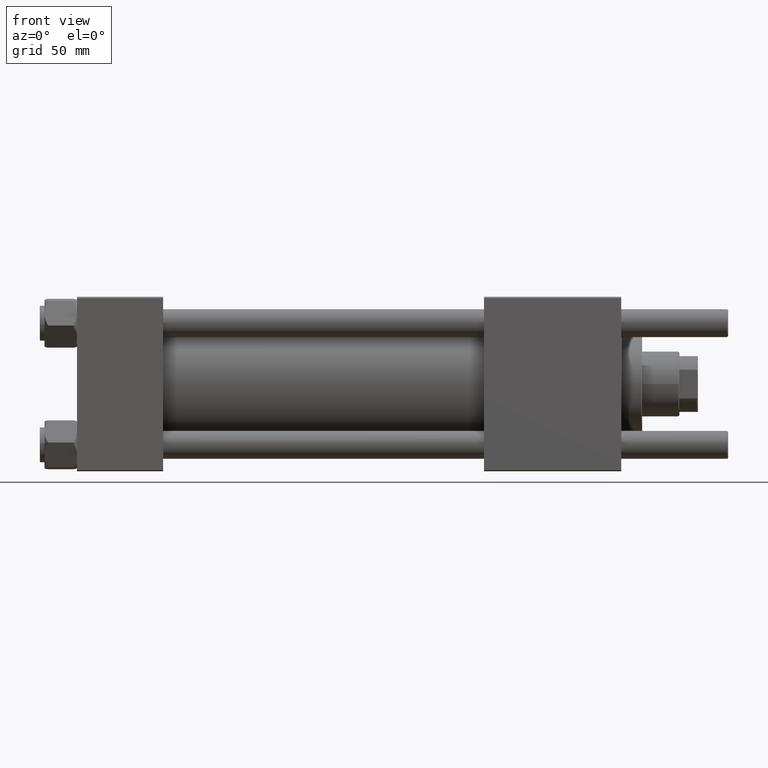
[diagram: clean part render]
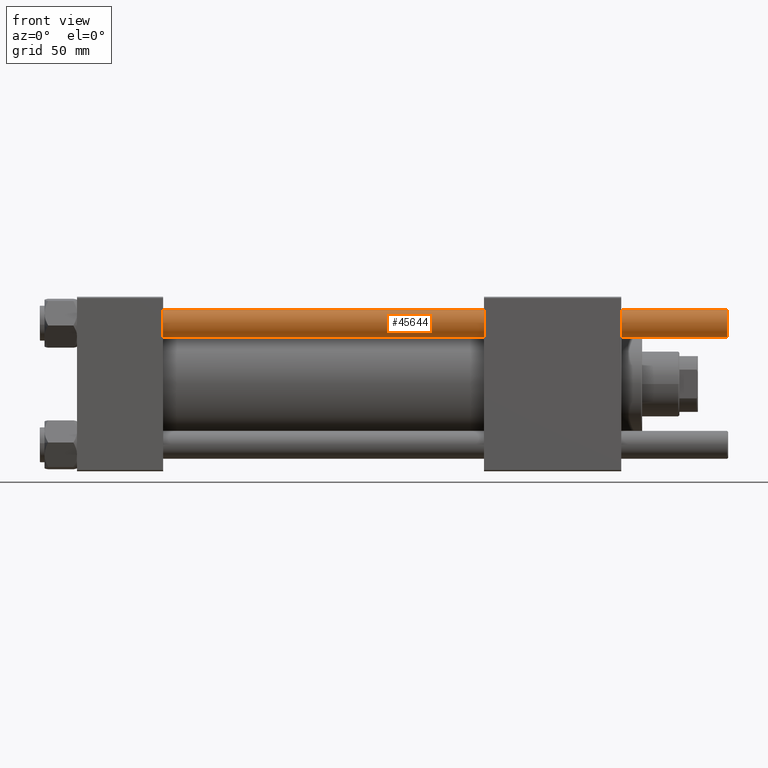
[diagram: same view with one face highlighted and labeled with its STEP entity id]
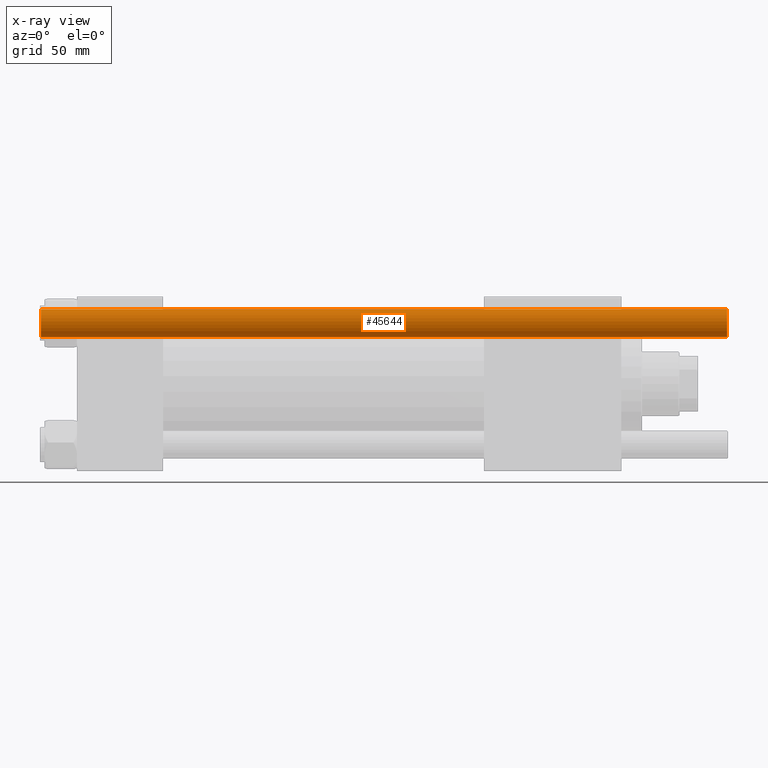
[diagram: x-ray of the same camera — body ghosted, the highlighted face saturated]
A machine part, front view. The second image highlights one B-rep face of the part: STEP entity #45644.
The next image is the same camera in x-ray: the body ghosted, the highlighted face saturated — about 0% of this face is hidden behind the body in this view.
In plain terms, the highlighted cylindrical surface (edge-blend (fillet) strip) has radius 6 mm, axis along (-1, 0, -0).
Its self-contained STEP definition (entity closure, byte-faithful):
#877 = DIRECTION ( 'NONE',  ( -1.000000000000000000, 0.000000000000000000, 0.000000000000000000 ) ) ;
#2550 = AXIS2_PLACEMENT_3D ( 'NONE', #19594, #53816, #877 ) ;
#3741 = LINE ( 'NONE', #27032, #30063 ) ;
#6054 = CYLINDRICAL_SURFACE ( 'NONE', #2550, 6.000000000000000888 ) ;
#9783 = AXIS2_PLACEMENT_3D ( 'NONE', #48671, #34888, #13859 ) ;
#11742 = DIRECTION ( 'NONE',  ( 1.000000000000000000, 0.000000000000000000, 0.000000000000000000 ) ) ;
#13859 = DIRECTION ( 'NONE',  ( 1.000000000000000000, 0.000000000000000000, 0.000000000000000000 ) ) ;
#14819 = ORIENTED_EDGE ( 'NONE', *, *, #52334, .T. ) ;
#18348 = EDGE_LOOP ( 'NONE', ( #35397, #14819, #43630, #32597 ) ) ;
#18969 = DIRECTION ( 'NONE',  ( -0.000000000000000000, -0.000000000000000000, -1.000000000000000000 ) ) ;
#19594 = CARTESIAN_POINT ( 'NONE',  ( 0.000000000000000000, 0.000000000000000000, 296.0000000000000000 ) ) ;
#20654 = DIRECTION ( 'NONE',  ( 0.000000000000000000, 0.000000000000000000, -1.000000000000000000 ) ) ;
#21222 = CARTESIAN_POINT ( 'NONE',  ( 0.000000000000000000, 0.000000000000000000, 295.4999999999999432 ) ) ;
#22728 = AXIS2_PLACEMENT_3D ( 'NONE', #21222, #20654, #11742 ) ;
#22959 = CARTESIAN_POINT ( 'NONE',  ( 6.000000000000000888, 7.347880794884120722E-16, 0.4999999999999449329 ) ) ;
#25591 = CARTESIAN_POINT ( 'NONE',  ( 6.000000000000000888, 7.347880794884120722E-16, 295.4999999999999432 ) ) ;
#26458 = VERTEX_POINT ( 'NONE', #22959 ) ;
#26680 = CARTESIAN_POINT ( 'NONE',  ( -6.000000000000000888, 0.000000000000000000, 0.4999999999999449329 ) ) ;
#27032 = CARTESIAN_POINT ( 'NONE',  ( -6.000000000000000888, 0.000000000000000000, 296.0000000000000000 ) ) ;
#30063 = VECTOR ( 'NONE', #18969, 1000.000000000000000 ) ;
#32597 = ORIENTED_EDGE ( 'NONE', *, *, #33379, .F. ) ;
#33379 = EDGE_CURVE ( 'NONE', #40691, #48783, #3741, .T. ) ;
#34888 = DIRECTION ( 'NONE',  ( -0.000000000000000000, -0.000000000000000000, 1.000000000000000000 ) ) ;
#35397 = ORIENTED_EDGE ( 'NONE', *, *, #51567, .T. ) ;
#35930 = VERTEX_POINT ( 'NONE', #25591 ) ;
#36295 = FACE_OUTER_BOUND ( 'NONE', #18348, .T. ) ;
#37347 = VECTOR ( 'NONE', #43092, 1000.000000000000000 ) ;
#38513 = LINE ( 'NONE', #42537, #37347 ) ;
#39213 = CIRCLE ( 'NONE', #9783, 6.000000000000000888 ) ;
#40691 = VERTEX_POINT ( 'NONE', #48632 ) ;
#42537 = CARTESIAN_POINT ( 'NONE',  ( 6.000000000000000888, 7.347880794884120722E-16, 296.0000000000000000 ) ) ;
#43092 = DIRECTION ( 'NONE',  ( -0.000000000000000000, -0.000000000000000000, -1.000000000000000000 ) ) ;
#43630 = ORIENTED_EDGE ( 'NONE', *, *, #53059, .T. ) ;
#45644 = ADVANCED_FACE ( 'NONE', ( #36295 ), #6054, .T. ) ;
#47541 = CIRCLE ( 'NONE', #22728, 6.000000000000000888 ) ;
#48632 = CARTESIAN_POINT ( 'NONE',  ( -6.000000000000000888, 0.000000000000000000, 295.4999999999999432 ) ) ;
#48671 = CARTESIAN_POINT ( 'NONE',  ( 0.000000000000000000, 0.000000000000000000, 0.4999999999999449329 ) ) ;
#48783 = VERTEX_POINT ( 'NONE', #26680 ) ;
#51567 = EDGE_CURVE ( 'NONE', #40691, #35930, #47541, .T. ) ;
#52334 = EDGE_CURVE ( 'NONE', #35930, #26458, #38513, .T. ) ;
#53059 = EDGE_CURVE ( 'NONE', #26458, #48783, #39213, .T. ) ;
#53816 = DIRECTION ( 'NONE',  ( -0.000000000000000000, -0.000000000000000000, -1.000000000000000000 ) ) ;